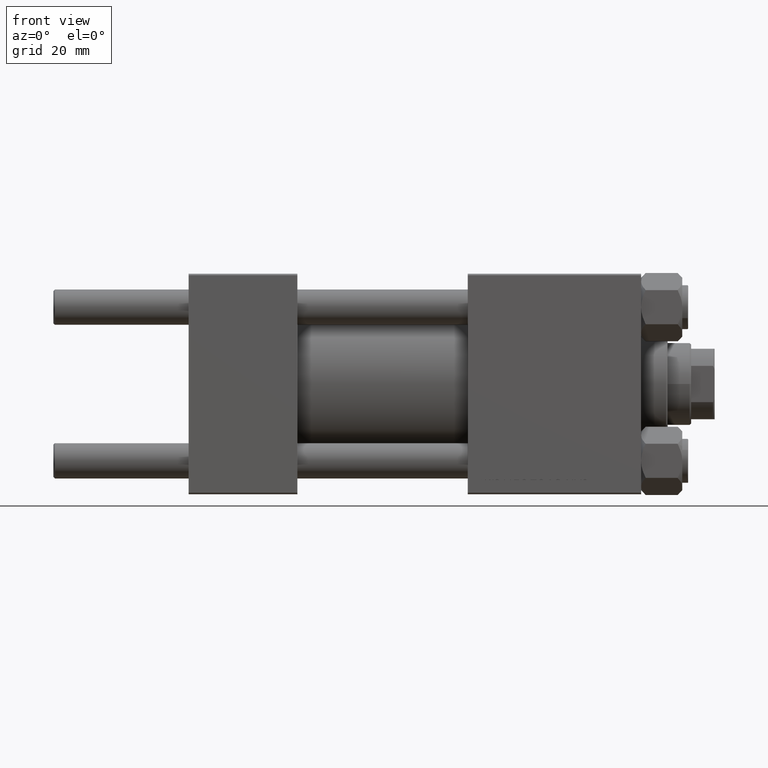
[diagram: clean part render]
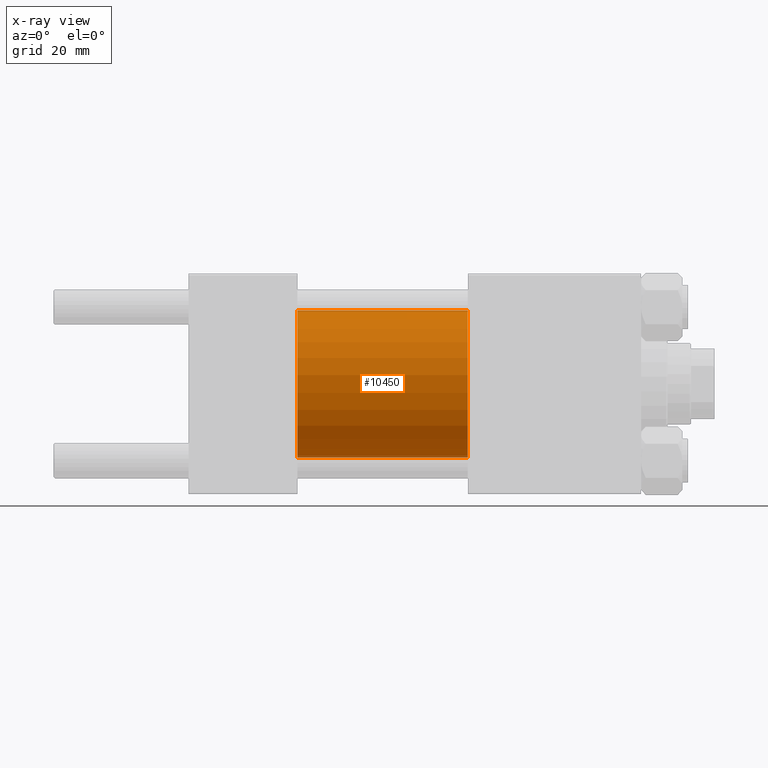
[diagram: x-ray — body ghosted, one internal face saturated and labeled with its STEP entity id]
A machine part, front view, then the same camera in x-ray: the body is ghosted and one INTERNAL B-rep face — a face not visible from any outside direction — is saturated and labeled: STEP entity #10450.
In plain terms, the highlighted cylindrical surface (partial cylindrical patch) has radius 25 mm, axis along (-1, -0, -0).
Its self-contained STEP definition (entity closure, byte-faithful):
#444 = ORIENTED_EDGE ( 'NONE', *, *, #45768, .T. ) ;
#683 = CARTESIAN_POINT ( 'NONE',  ( 37.00000000000000000, 0.000000000000000000, 0.000000000000000000 ) ) ;
#1898 = DIRECTION ( 'NONE',  ( -1.000000000000000000, -0.000000000000000000, -0.000000000000000000 ) ) ;
#2419 = VERTEX_POINT ( 'NONE', #49263 ) ;
#3558 = ORIENTED_EDGE ( 'NONE', *, *, #38593, .T. ) ;
#7278 = CARTESIAN_POINT ( 'NONE',  ( 37.00000000000000000, 3.061616997868382254E-15, -25.00000000000000000 ) ) ;
#7318 = ORIENTED_EDGE ( 'NONE', *, *, #30537, .F. ) ;
#8686 = CARTESIAN_POINT ( 'NONE',  ( 95.00000000000000000, 0.000000000000000000, 25.00000000000000000 ) ) ;
#10450 = ADVANCED_FACE ( 'NONE', ( #32463 ), #47825, .F. ) ;
#11928 = CARTESIAN_POINT ( 'NONE',  ( 95.00000000000000000, 3.061616997868382254E-15, -25.00000000000000000 ) ) ;
#12697 = ORIENTED_EDGE ( 'NONE', *, *, #21220, .F. ) ;
#13358 = CARTESIAN_POINT ( 'NONE',  ( 95.00000000000000000, 0.000000000000000000, 0.000000000000000000 ) ) ;
#14138 = VECTOR ( 'NONE', #18806, 1000.000000000000000 ) ;
#15097 = DIRECTION ( 'NONE',  ( 0.000000000000000000, 0.000000000000000000, 1.000000000000000000 ) ) ;
#16023 = DIRECTION ( 'NONE',  ( 1.000000000000000000, 0.000000000000000000, 0.000000000000000000 ) ) ;
#16936 = CARTESIAN_POINT ( 'NONE',  ( 95.00000000000000000, 0.000000000000000000, 0.000000000000000000 ) ) ;
#18806 = DIRECTION ( 'NONE',  ( -1.000000000000000000, -0.000000000000000000, -0.000000000000000000 ) ) ;
#19989 = LINE ( 'NONE', #8686, #14138 ) ;
#20354 = AXIS2_PLACEMENT_3D ( 'NONE', #683, #16023, #31349 ) ;
#21220 = EDGE_CURVE ( 'NONE', #24008, #47908, #42052, .T. ) ;
#22123 = DIRECTION ( 'NONE',  ( -1.000000000000000000, -0.000000000000000000, -0.000000000000000000 ) ) ;
#24008 = VERTEX_POINT ( 'NONE', #34861 ) ;
#24795 = CIRCLE ( 'NONE', #48100, 25.00000000000000000 ) ;
#29466 = DIRECTION ( 'NONE',  ( 1.000000000000000000, 0.000000000000000000, 0.000000000000000000 ) ) ;
#29517 = LINE ( 'NONE', #36325, #47997 ) ;
#30101 = EDGE_LOOP ( 'NONE', ( #444, #3558, #12697, #7318 ) ) ;
#30537 = EDGE_CURVE ( 'NONE', #2419, #24008, #19989, .T. ) ;
#31349 = DIRECTION ( 'NONE',  ( 0.000000000000000000, 0.000000000000000000, -1.000000000000000000 ) ) ;
#32267 = DIRECTION ( 'NONE',  ( 0.000000000000000000, 0.000000000000000000, -1.000000000000000000 ) ) ;
#32463 = FACE_OUTER_BOUND ( 'NONE', #30101, .T. ) ;
#34861 = CARTESIAN_POINT ( 'NONE',  ( 37.00000000000000000, 0.000000000000000000, 25.00000000000000000 ) ) ;
#36325 = CARTESIAN_POINT ( 'NONE',  ( 95.00000000000000000, 3.061616997868382254E-15, -25.00000000000000000 ) ) ;
#38593 = EDGE_CURVE ( 'NONE', #39521, #47908, #29517, .T. ) ;
#38652 = AXIS2_PLACEMENT_3D ( 'NONE', #13358, #22123, #15097 ) ;
#39521 = VERTEX_POINT ( 'NONE', #11928 ) ;
#42052 = CIRCLE ( 'NONE', #20354, 25.00000000000000000 ) ;
#45768 = EDGE_CURVE ( 'NONE', #2419, #39521, #24795, .T. ) ;
#47825 = CYLINDRICAL_SURFACE ( 'NONE', #38652, 25.00000000000000000 ) ;
#47908 = VERTEX_POINT ( 'NONE', #7278 ) ;
#47997 = VECTOR ( 'NONE', #1898, 1000.000000000000000 ) ;
#48100 = AXIS2_PLACEMENT_3D ( 'NONE', #16936, #29466, #32267 ) ;
#49263 = CARTESIAN_POINT ( 'NONE',  ( 95.00000000000000000, 0.000000000000000000, 25.00000000000000000 ) ) ;